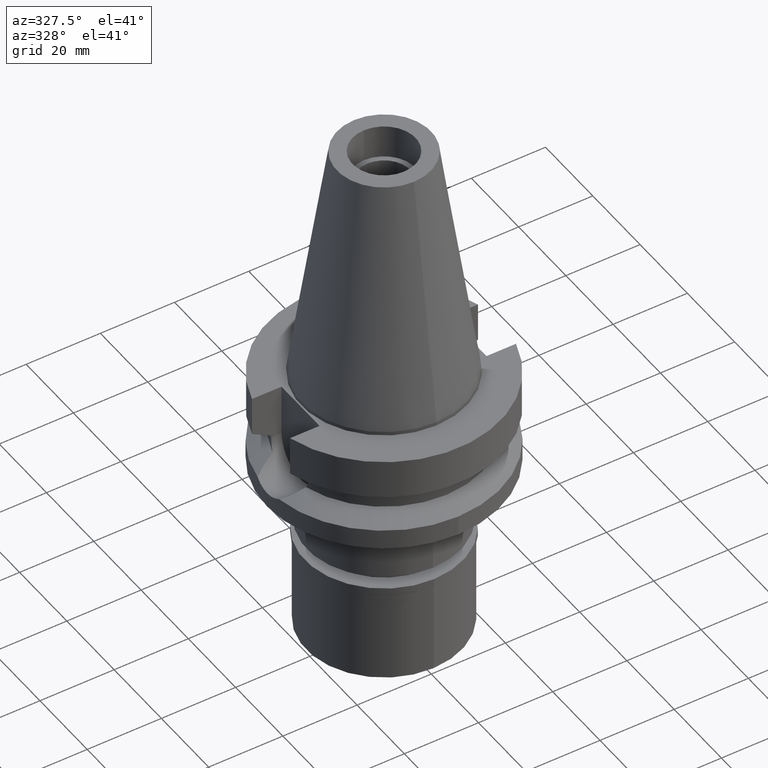
[diagram: clean part render]
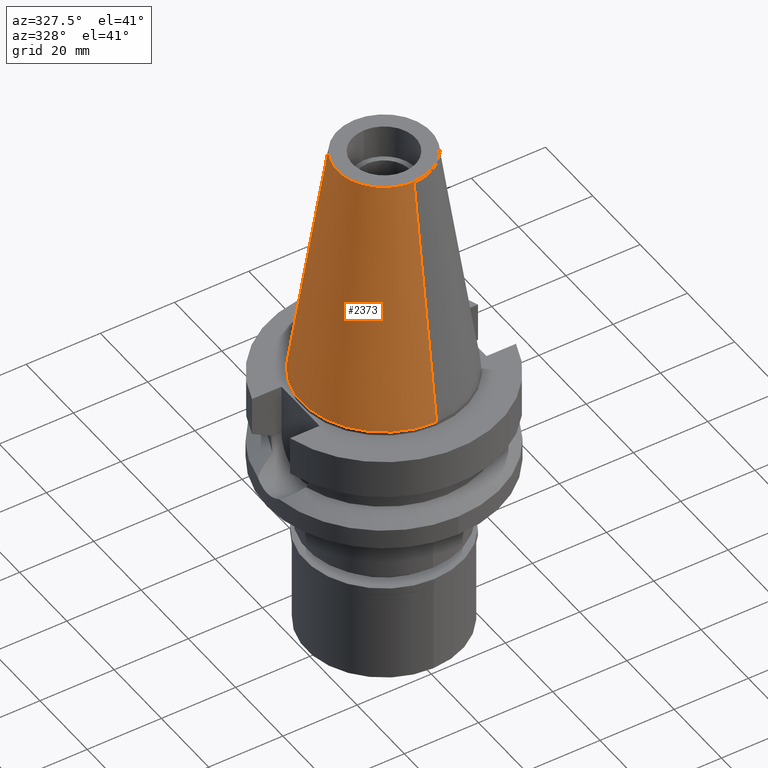
[diagram: same view with one face highlighted and labeled with its STEP entity id]
A machine part, auxiliary view. The second image highlights one B-rep face of the part: STEP entity #2373.
In plain terms, the highlighted conical surface has half-angle 8.297 deg.
Its self-contained STEP definition (entity closure, byte-faithful):
#10 = EDGE_CURVE ( 'NONE', #1844, #1295, #444, .T. ) ;
#13 = CIRCLE ( 'NONE', #2324, 22.22500000000000142 ) ;
#444 = LINE ( 'NONE', #1827, #1757 ) ;
#480 = DIRECTION ( 'NONE',  ( 0.0000000000000000000, 0.0000000000000000000, -1.000000000000000000 ) ) ;
#495 = CONICAL_SURFACE ( 'NONE', #1536, 17.45633449714999941, 0.1448099680379422438 ) ;
#695 = LINE ( 'NONE', #1145, #1433 ) ;
#738 = EDGE_LOOP ( 'NONE', ( #2873, #1332, #2650, #946 ) ) ;
#821 = VERTEX_POINT ( 'NONE', #1618 ) ;
#941 = FACE_OUTER_BOUND ( 'NONE', #738, .T. ) ;
#946 = ORIENTED_EDGE ( 'NONE', *, *, #2129, .T. ) ;
#956 = DIRECTION ( 'NONE',  ( 0.0000000000000000000, 0.0000000000000000000, -1.000000000000000000 ) ) ;
#966 = CARTESIAN_POINT ( 'NONE',  ( 0.0000000000000000000, -12.68766899429999917, 65.40000000000000568 ) ) ;
#1145 = CARTESIAN_POINT ( 'NONE',  ( 0.0000000000000000000, 12.68766899429999917, 65.40000000000000568 ) ) ;
#1211 = DIRECTION ( 'NONE',  ( 0.0000000000000000000, -1.000000000000000000, 0.0000000000000000000 ) ) ;
#1274 = CARTESIAN_POINT ( 'NONE',  ( 0.0000000000000000000, 12.68766899429999917, 65.40000000000000568 ) ) ;
#1295 = VERTEX_POINT ( 'NONE', #2465 ) ;
#1332 = ORIENTED_EDGE ( 'NONE', *, *, #10, .F. ) ;
#1369 = DIRECTION ( 'NONE',  ( 0.0000000000000000000, -0.1443043893539925626, -0.9895333461855498891 ) ) ;
#1397 = DIRECTION ( 'NONE',  ( 0.0000000000000000000, -1.000000000000000000, 0.0000000000000000000 ) ) ;
#1433 = VECTOR ( 'NONE', #1859, 1000.000000000000114 ) ;
#1536 = AXIS2_PLACEMENT_3D ( 'NONE', #2823, #956, #1211 ) ;
#1618 = CARTESIAN_POINT ( 'NONE',  ( 0.0000000000000000000, 22.22500000000000142, -9.947598300640998705E-14 ) ) ;
#1715 = EDGE_CURVE ( 'NONE', #1844, #2532, #2074, .T. ) ;
#1757 = VECTOR ( 'NONE', #1369, 1000.000000000000114 ) ;
#1827 = CARTESIAN_POINT ( 'NONE',  ( 0.0000000000000000000, -12.68766899429999917, 65.40000000000000568 ) ) ;
#1844 = VERTEX_POINT ( 'NONE', #966 ) ;
#1859 = DIRECTION ( 'NONE',  ( 0.0000000000000000000, 0.1443043893539925626, -0.9895333461855498891 ) ) ;
#1880 = DIRECTION ( 'NONE',  ( 0.0000000000000000000, 0.0000000000000000000, -1.000000000000000000 ) ) ;
#2074 = CIRCLE ( 'NONE', #2363, 12.68766899429999917 ) ;
#2101 = CARTESIAN_POINT ( 'NONE',  ( 0.0000000000000000000, 0.0000000000000000000, 65.40000000000000568 ) ) ;
#2129 = EDGE_CURVE ( 'NONE', #2532, #821, #695, .T. ) ;
#2144 = CARTESIAN_POINT ( 'NONE',  ( 0.0000000000000000000, 0.0000000000000000000, -2.273736754432000254E-13 ) ) ;
#2324 = AXIS2_PLACEMENT_3D ( 'NONE', #2144, #480, #1397 ) ;
#2363 = AXIS2_PLACEMENT_3D ( 'NONE', #2101, #1880, #2405 ) ;
#2373 = ADVANCED_FACE ( 'NONE', ( #941 ), #495, .T. ) ;
#2405 = DIRECTION ( 'NONE',  ( 0.0000000000000000000, -1.000000000000000000, 0.0000000000000000000 ) ) ;
#2465 = CARTESIAN_POINT ( 'NONE',  ( 0.0000000000000000000, -22.22500000000000142, -9.947598300640998705E-14 ) ) ;
#2532 = VERTEX_POINT ( 'NONE', #1274 ) ;
#2650 = ORIENTED_EDGE ( 'NONE', *, *, #1715, .T. ) ;
#2823 = CARTESIAN_POINT ( 'NONE',  ( 0.0000000000000000000, 0.0000000000000000000, 32.70000000000000284 ) ) ;
#2873 = ORIENTED_EDGE ( 'NONE', *, *, #2958, .F. ) ;
#2958 = EDGE_CURVE ( 'NONE', #1295, #821, #13, .T. ) ;